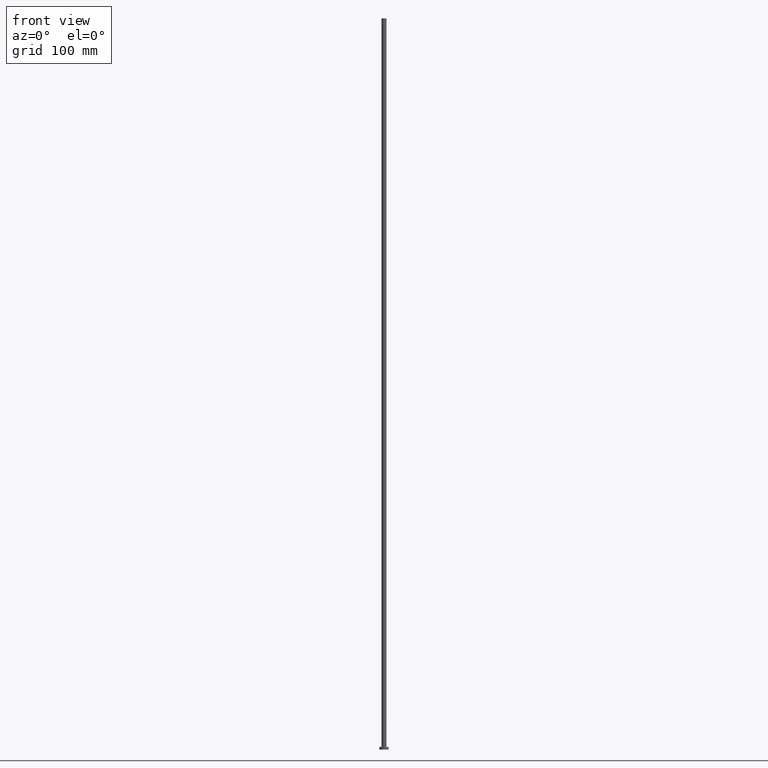
[diagram: clean part render]
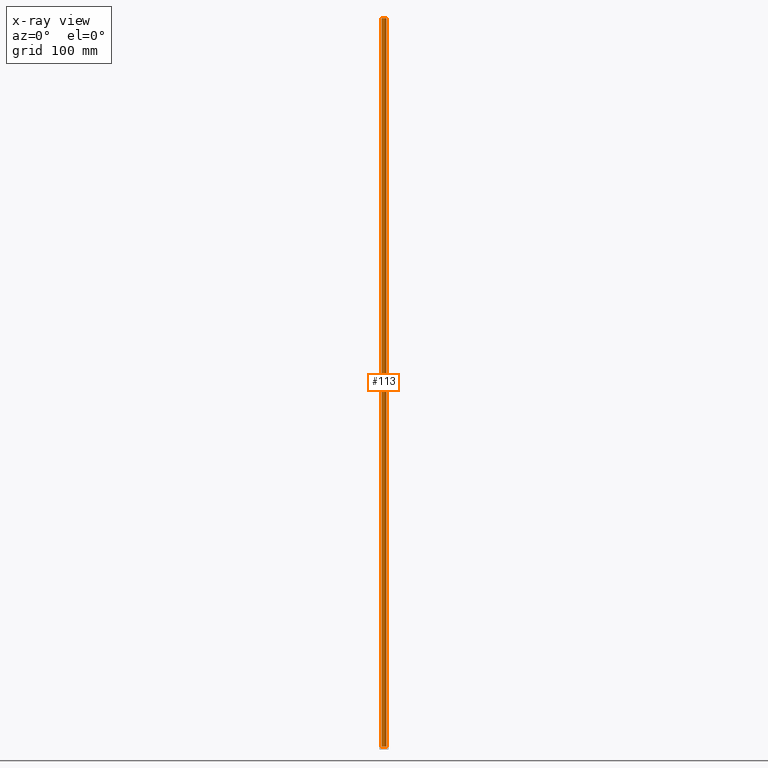
[diagram: x-ray — body ghosted, one internal face saturated and labeled with its STEP entity id]
A machine part, front view, then the same camera in x-ray: the body is ghosted and one INTERNAL B-rep face — a face not visible from any outside direction — is saturated and labeled: STEP entity #113.
In plain terms, the highlighted cylindrical surface (edge-blend (fillet) strip) has radius 2.75 mm, axis along (-0, -0, -1).
Its self-contained STEP definition (entity closure, byte-faithful):
#9 = DIRECTION ( 'NONE',  ( -1.000000000000000000, 0.000000000000000000, 0.000000000000000000 ) ) ;
#11 = CYLINDRICAL_SURFACE ( 'NONE', #152, 2.750000000000000000 ) ;
#12 = CARTESIAN_POINT ( 'NONE',  ( 0.000000000000000000, 0.000000000000000000, 800.0000000000000000 ) ) ;
#13 = VERTEX_POINT ( 'NONE', #117 ) ;
#16 = CIRCLE ( 'NONE', #205, 2.750000000000000000 ) ;
#31 = CARTESIAN_POINT ( 'NONE',  ( -2.750000000000000000, 0.000000000000000000, 800.0000000000000000 ) ) ;
#36 = CARTESIAN_POINT ( 'NONE',  ( 0.000000000000000000, 0.000000000000000000, 3.000000000000000000 ) ) ;
#44 = EDGE_CURVE ( 'NONE', #13, #182, #67, .T. ) ;
#49 = ORIENTED_EDGE ( 'NONE', *, *, #44, .F. ) ;
#51 = VECTOR ( 'NONE', #155, 1000.000000000000000 ) ;
#60 = ORIENTED_EDGE ( 'NONE', *, *, #234, .F. ) ;
#62 = CARTESIAN_POINT ( 'NONE',  ( -2.750000000000000000, 0.000000000000000000, 3.000000000000000000 ) ) ;
#67 = CIRCLE ( 'NONE', #142, 2.750000000000000000 ) ;
#69 = LINE ( 'NONE', #91, #51 ) ;
#77 = CARTESIAN_POINT ( 'NONE',  ( 2.750000000000000000, 3.367778697655221012E-16, 3.000000000000000000 ) ) ;
#91 = CARTESIAN_POINT ( 'NONE',  ( 2.750000000000000000, 3.367778697655221012E-16, 800.0000000000000000 ) ) ;
#96 = CARTESIAN_POINT ( 'NONE',  ( 0.000000000000000000, 0.000000000000000000, 800.0000000000000000 ) ) ;
#99 = LINE ( 'NONE', #31, #145 ) ;
#103 = DIRECTION ( 'NONE',  ( 1.000000000000000000, 0.000000000000000000, 0.000000000000000000 ) ) ;
#106 = DIRECTION ( 'NONE',  ( 1.000000000000000000, 0.000000000000000000, 0.000000000000000000 ) ) ;
#113 = ADVANCED_FACE ( 'NONE', ( #116 ), #11, .T. ) ;
#116 = FACE_OUTER_BOUND ( 'NONE', #129, .T. ) ;
#117 = CARTESIAN_POINT ( 'NONE',  ( 2.750000000000000000, 3.367778697655221012E-16, 800.0000000000000000 ) ) ;
#126 = EDGE_CURVE ( 'NONE', #13, #227, #69, .T. ) ;
#127 = CARTESIAN_POINT ( 'NONE',  ( -2.750000000000000000, 0.000000000000000000, 800.0000000000000000 ) ) ;
#129 = EDGE_LOOP ( 'NONE', ( #49, #219, #184, #60 ) ) ;
#142 = AXIS2_PLACEMENT_3D ( 'NONE', #12, #181, #103 ) ;
#145 = VECTOR ( 'NONE', #224, 1000.000000000000000 ) ;
#151 = DIRECTION ( 'NONE',  ( 0.000000000000000000, 0.000000000000000000, 1.000000000000000000 ) ) ;
#152 = AXIS2_PLACEMENT_3D ( 'NONE', #96, #180, #9 ) ;
#155 = DIRECTION ( 'NONE',  ( -0.000000000000000000, -0.000000000000000000, -1.000000000000000000 ) ) ;
#173 = VERTEX_POINT ( 'NONE', #62 ) ;
#175 = EDGE_CURVE ( 'NONE', #227, #173, #16, .T. ) ;
#180 = DIRECTION ( 'NONE',  ( -0.000000000000000000, -0.000000000000000000, -1.000000000000000000 ) ) ;
#181 = DIRECTION ( 'NONE',  ( 0.000000000000000000, 0.000000000000000000, 1.000000000000000000 ) ) ;
#182 = VERTEX_POINT ( 'NONE', #127 ) ;
#184 = ORIENTED_EDGE ( 'NONE', *, *, #175, .T. ) ;
#205 = AXIS2_PLACEMENT_3D ( 'NONE', #36, #151, #106 ) ;
#219 = ORIENTED_EDGE ( 'NONE', *, *, #126, .T. ) ;
#224 = DIRECTION ( 'NONE',  ( -0.000000000000000000, -0.000000000000000000, -1.000000000000000000 ) ) ;
#227 = VERTEX_POINT ( 'NONE', #77 ) ;
#234 = EDGE_CURVE ( 'NONE', #182, #173, #99, .T. ) ;